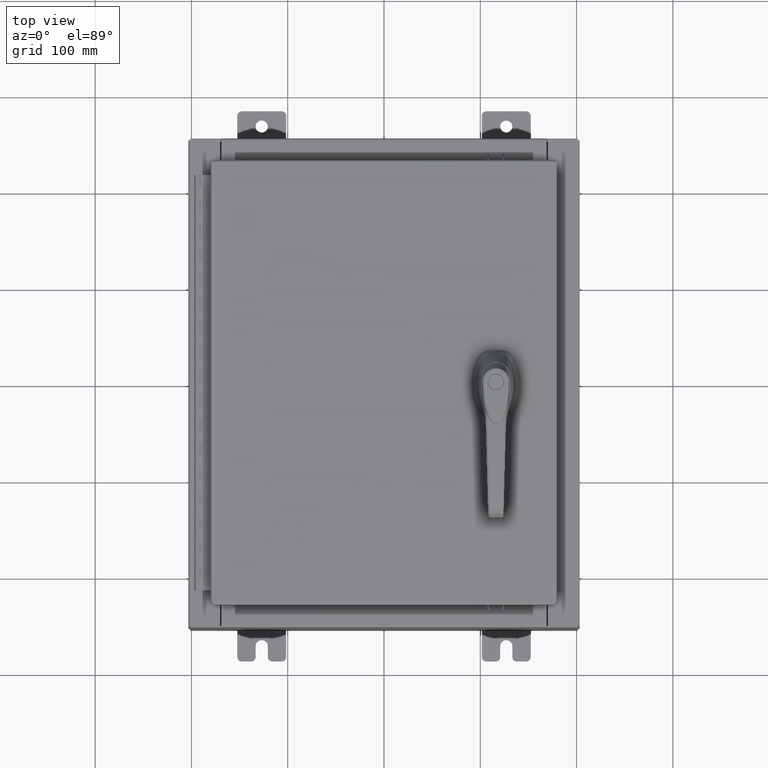
[diagram: clean part render]
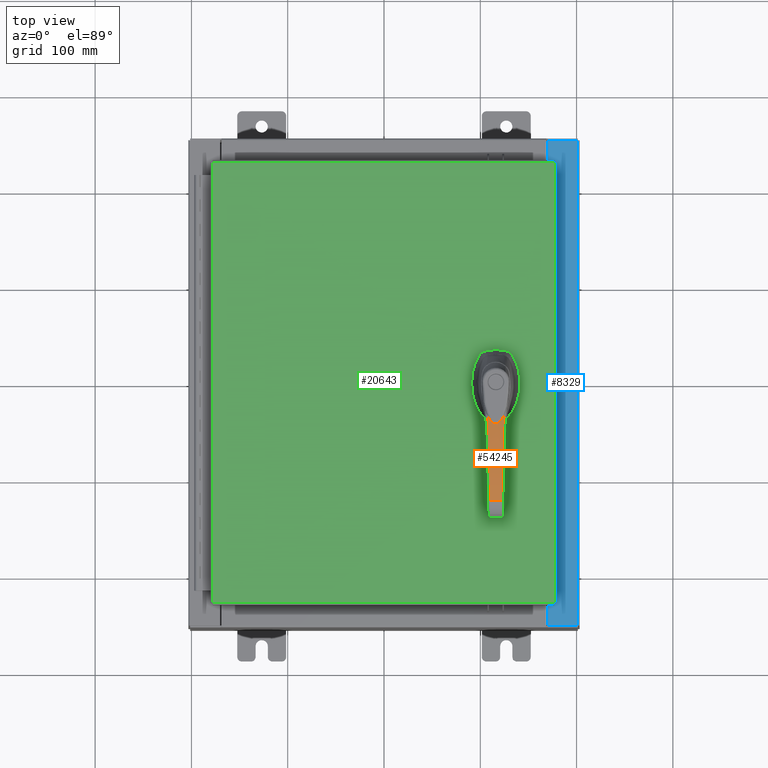
[diagram: same view with three faces highlighted in distinct colors, each labeled with its STEP entity id]
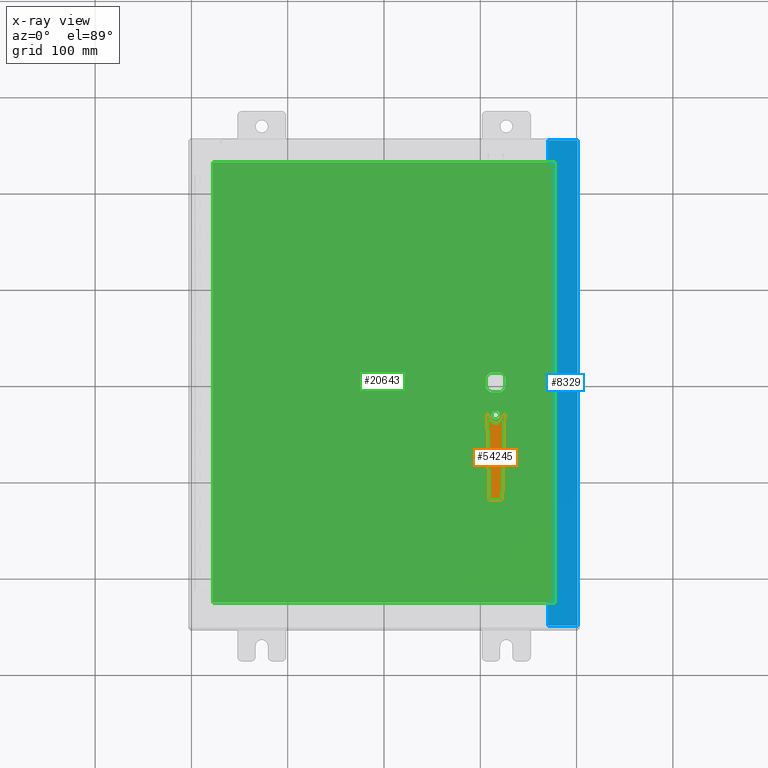
[diagram: x-ray of the same camera — body ghosted, the three highlighted faces saturated]
A machine part, top view with three faces highlighted in distinct colors.
The next image is the same camera in x-ray (body ghosted, the three faces saturated) — at least one of them is partly hidden behind the body in this view.
Their STEP definitions:

[orange] entity #54245 — the highlighted cylindrical surface (partial cylindrical patch) has radius 300 mm, axis along (-1, 0, 0).
#104 = ORIENTED_EDGE ( 'NONE', *, *, #26045, .F. ) ;
#1364 = CARTESIAN_POINT ( 'NONE',  ( 4.805199877897494300, 0.2549857665720929900, 1.824333981427782600 ) ) ;
#1464 = CARTESIAN_POINT ( 'NONE',  ( 1.461149604711532000, -0.3419711910575445900, 1.819977865742857400 ) ) ;
#1591 = CARTESIAN_POINT ( 'NONE',  ( 3.177837644293160400, -0.2973156531871449800, 1.940911141800460300 ) ) ;
#2508 = ORIENTED_EDGE ( 'NONE', *, *, #64305, .F. ) ;
#2923 = VERTEX_POINT ( 'NONE', #43318 ) ;
#3711 = CARTESIAN_POINT ( 'NONE',  ( 4.805199877897494300, 0.2549857665720929900, 1.824333981427782600 ) ) ;
#3734 = CARTESIAN_POINT ( 'NONE',  ( 1.411289339368777800, 0.2990482287359025900, 1.812323976823128300 ) ) ;
#4105 = CARTESIAN_POINT ( 'NONE',  ( 1.531841238162601400, 0.2267549729690642700, 1.829627039123031400 ) ) ;
#4437 = CARTESIAN_POINT ( 'NONE',  ( 3.354255696629975700, 0.2927274858646525300, 1.939252233246042200 ) ) ;
#4461 = CARTESIAN_POINT ( 'NONE',  ( 1.647126988818372600, 0.1096758325861591900, 1.844991371880551300 ) ) ;
#4511 = EDGE_CURVE ( 'NONE', #2923, #33308, #6240, .T. ) ;
#4808 = CARTESIAN_POINT ( 'NONE',  ( 1.962192344927157900, 0.3289308373534524700, 1.881644855761428500 ) ) ;
#4827 = CARTESIAN_POINT ( 'NONE',  ( 1.673618130089368700, -0.04931904063700406900, 1.848357284676167800 ) ) ;
#5187 = CARTESIAN_POINT ( 'NONE',  ( 1.633523690778695900, -0.1294182121702329200, 1.843237296713774200 ) ) ;
#5570 = CARTESIAN_POINT ( 'NONE',  ( 1.531958825236961100, -0.2266696006880555800, 1.829643296008423000 ) ) ;
#5815 = VECTOR ( 'NONE', #55509, 39.37007874015748100 ) ;
#5925 = CARTESIAN_POINT ( 'NONE',  ( 1.331296485917107300, -0.3367782127205284400, 1.800234481340108100 ) ) ;
#6240 = B_SPLINE_CURVE_WITH_KNOTS ( 'NONE', 3,
 ( #9957, #1464, #26918, #85909 ),
 .UNSPECIFIED., .F., .F.,
 ( 4, 4 ),
 ( 0.0000000000000000000, 1.000000000000000000 ),
 .UNSPECIFIED. ) ;
#6671 = B_SPLINE_CURVE_WITH_KNOTS ( 'NONE', 3,
 ( #104382, #70858, #28825, #87812, #37302, #96263, #45762, #104757, #54266, #3734, #62739, #12243, #71219, #20691, #79723, #29200, #88170, #37660, #96637, #46126, #105116, #54644, #4105, #63086, #12598, #71593, #21049, #80083, #29579, #88541, #38011, #96996, #46502, #105485, #54997, #4461, #63468, #12968, #71962, #21421, #80453, #29943, #88906, #38375, #97350, #46874, #105860, #55355, #4827, #63852, #13338, #72316, #21788, #80823, #30308, #89259, #38750, #97719, #47226, #106218, #55735, #5187, #64210, #13699, #72693, #22144, #81183, #30670, #89619, #39097, #98098, #47589, #106578, #56097, #5570, #64564, #14051, #73065, #22494, #81532, #31014, #89995, #39467, #98444, #47960, #106945, #56456, #5925, #64930 ),
 .UNSPECIFIED., .F., .F.,
 ( 4, 2, 1, 1, 1, 1, 1, 2, 2, 2, 1, 1, 1, 1, 1, 2, 2, 2, 1, 1, 1, 1, 1, 2, 2, 2, 1, 1, 1, 2, 2, 2, 2, 1, 1, 1, 2, 2, 2, 1, 1, 1, 1, 2, 2, 2, 1, 1, 1, 1, 1, 2, 2, 2, 1, 1, 1, 1, 1, 2, 2, 4 ),
 ( 0.0000000000000000000, 0.06249999999999003600, 0.09374999999998538700, 0.1093749999999830600, 0.1171874999999821500, 0.1210937499999813100, 0.1230468749999808500, 0.1240234374999806500, 0.1249999999999804600, 0.1874999999999860900, 0.2187499999999889000, 0.2343749999999906500, 0.2421874999999914500, 0.2460937499999918700, 0.2480468749999917300, 0.2490234374999917000, 0.2499999999999916700, 0.3124999999999928400, 0.3437499999999932300, 0.3593749999999933900, 0.3671874999999934500, 0.3710937499999935100, 0.3730468749999932800, 0.3740234374999929500, 0.3749999999999926200, 0.4062499999999894000, 0.4218749999999877900, 0.4296874999999869500, 0.4335937499999864000, 0.4355468749999860700, 0.4374999999999857300, 0.4999999999999753500, 0.5312499999999701400, 0.5468749999999676900, 0.5546874999999662500, 0.5585937499999658100, 0.5605468749999654700, 0.5624999999999651400, 0.5937499999999605900, 0.6093749999999581400, 0.6171874999999569200, 0.6210937499999562600, 0.6230468749999559200, 0.6240234374999558100, 0.6249999999999555900, 0.6874999999999337200, 0.7187499999999227300, 0.7343749999999172900, 0.7421874999999146200, 0.7460937499999134000, 0.7480468749999127400, 0.7490234374999126300, 0.7499999999999126300, 0.8124999999999367200, 0.8437499999999484900, 0.8593749999999547000, 0.8671874999999578100, 0.8710937499999592500, 0.8730468749999597000, 0.8740234374999602500, 0.8749999999999607000, 1.000000000000000000 ),
 .UNSPECIFIED. ) ;
#9957 = CARTESIAN_POINT ( 'NONE',  ( 1.549936709521859200, -0.3396595521461270900, 1.832114909085235300 ) ) ;
#10080 = CARTESIAN_POINT ( 'NONE',  ( 2.089199057867317400, -0.3256326111308650600, 1.905831137458305200 ) ) ;
#12243 = CARTESIAN_POINT ( 'NONE',  ( 1.412147350919585700, 0.2986147853169349700, 1.812451616407730400 ) ) ;
#12598 = CARTESIAN_POINT ( 'NONE',  ( 1.572688659303547800, 0.1951527432348467400, 1.835214844775211200 ) ) ;
#12944 = CARTESIAN_POINT ( 'NONE',  ( 3.255921162986640000, 0.2952847344197878100, 1.940502775483823500 ) ) ;
#12968 = CARTESIAN_POINT ( 'NONE',  ( 1.659580715408759800, 0.08662144301095313400, 1.846580881107003000 ) ) ;
#13313 = CARTESIAN_POINT ( 'NONE',  ( 1.638260262526207900, 0.3373621368790555300, 1.844188585699166700 ) ) ;
#13338 = CARTESIAN_POINT ( 'NONE',  ( 1.668765304187863400, -0.06434175467436795100, 1.847744838486969500 ) ) ;
#13699 = CARTESIAN_POINT ( 'NONE',  ( 1.632785392386051800, -0.1304217021505276700, 1.843141712585303300 ) ) ;
#14051 = CARTESIAN_POINT ( 'NONE',  ( 1.496057899066949700, -0.2514591596072197100, 1.824640546464775000 ) ) ;
#14274 = ORIENTED_EDGE ( 'NONE', *, *, #4511, .F. ) ;
#17911 = CYLINDRICAL_SURFACE ( 'NONE', #20522, 11.81102362204727300 ) ;
#19522 = CARTESIAN_POINT ( 'NONE',  ( 1.285167403707583800, 0.3546133445978453800, 1.792860362760510200 ) ) ;
#20460 = B_SPLINE_CURVE_WITH_KNOTS ( 'NONE', 3,
 ( #19522, #78553, #44949, #103918 ),
 .UNSPECIFIED., .F., .F.,
 ( 4, 4 ),
 ( 0.0000000000000000000, 1.000000000000000000 ),
 .UNSPECIFIED. ) ;
#20522 = AXIS2_PLACEMENT_3D ( 'NONE', #31597, #90550, #98650 ) ;
#20691 = CARTESIAN_POINT ( 'NONE',  ( 1.456517634884639600, 0.2752119614751011300, 1.818981777874296900 ) ) ;
#21049 = CARTESIAN_POINT ( 'NONE',  ( 1.609689720394129200, 0.1588428430745445200, 1.840131652460313500 ) ) ;
#21401 = CARTESIAN_POINT ( 'NONE',  ( 3.197470930382345000, 0.2968049740498349700, 1.940850218433543400 ) ) ;
#21421 = CARTESIAN_POINT ( 'NONE',  ( 1.665449941461008700, 0.07307405170698645600, 1.847325382728708200 ) ) ;
#21788 = CARTESIAN_POINT ( 'NONE',  ( 1.667452722112520200, -0.06791437558087545800, 1.847578869016394800 ) ) ;
#22144 = CARTESIAN_POINT ( 'NONE',  ( 1.605775901944853000, -0.1635624813666130000, 1.839624697243182900 ) ) ;
#22494 = CARTESIAN_POINT ( 'NONE',  ( 1.450862142650987600, -0.2781988563434977200, 1.818152528769777100 ) ) ;
#26045 = EDGE_CURVE ( 'NONE', #50827, #41949, #20460, .T. ) ;
#26676 = CARTESIAN_POINT ( 'NONE',  ( 4.805199877897494300, -0.2549857665720952100, 1.824333981427782600 ) ) ;
#26918 = CARTESIAN_POINT ( 'NONE',  ( 1.372892883534211400, -0.3469424119739058000, 1.806884306011911500 ) ) ;
#28825 = CARTESIAN_POINT ( 'NONE',  ( 1.330367034998291900, 0.3365594585218243400, 1.800015887332631500 ) ) ;
#29200 = CARTESIAN_POINT ( 'NONE',  ( 1.500882007459661400, 0.2481468865976162200, 1.825310919166964500 ) ) ;
#29553 = CARTESIAN_POINT ( 'NONE',  ( 4.384581782162140200, 0.2659316760357900400, 1.876757077655752500 ) ) ;
#29579 = CARTESIAN_POINT ( 'NONE',  ( 1.627642221730809500, 0.1372262118340385800, 1.842474734026389200 ) ) ;
#29919 = CARTESIAN_POINT ( 'NONE',  ( 3.183455179332786300, 0.2971695341875231800, 1.940896711539998400 ) ) ;
#29943 = CARTESIAN_POINT ( 'NONE',  ( 1.666720180148472800, 0.06983946041971546300, 1.847486187034462300 ) ) ;
#30308 = CARTESIAN_POINT ( 'NONE',  ( 1.662946339963030900, -0.07969119123599965900, 1.847008659323605500 ) ) ;
#30670 = CARTESIAN_POINT ( 'NONE',  ( 1.567082441918974200, -0.1995284965863753600, 1.834452944274891600 ) ) ;
#31014 = CARTESIAN_POINT ( 'NONE',  ( 1.422341089794099600, -0.2934036132516589800, 1.813963700160034400 ) ) ;
#31597 = CARTESIAN_POINT ( 'NONE',  ( 3.149606299212600400, 0.3588687022006186700, -9.870078740157508100 ) ) ;
#33308 = VERTEX_POINT ( 'NONE', #78850 ) ;
#34723 = CARTESIAN_POINT ( 'NONE',  ( 1.285167403707583800, 0.3546133445978453800, 1.792860362760510200 ) ) ;
#37302 = CARTESIAN_POINT ( 'NONE',  ( 1.377774985390532600, 0.3154086851259891300, 1.807295794097445000 ) ) ;
#37660 = CARTESIAN_POINT ( 'NONE',  ( 1.524578228761906500, 0.2319618882066543100, 1.828620816553897500 ) ) ;
#37992 = CARTESIAN_POINT ( 'NONE',  ( 3.988872018762669800, 0.2762265065312503000, 1.911874702511223000 ) ) ;
#38011 = CARTESIAN_POINT ( 'NONE',  ( 1.631777938687821700, 0.1317797834924146800, 1.843011216588310100 ) ) ;
#38353 = CARTESIAN_POINT ( 'NONE',  ( 2.994844391632358600, 0.3020755544132371900, 1.941348543382798200 ) ) ;
#38375 = CARTESIAN_POINT ( 'NONE',  ( 1.675872596846173800, 0.04566907200706316800, 1.848644063507536100 ) ) ;
#38750 = CARTESIAN_POINT ( 'NONE',  ( 1.649525308882281900, -0.1053112417757890600, 1.845297665867068100 ) ) ;
#39097 = CARTESIAN_POINT ( 'NONE',  ( 1.540911026017878900, -0.2200747778046598100, 1.830878084273672900 ) ) ;
#39467 = CARTESIAN_POINT ( 'NONE',  ( 1.415001884902487700, -0.2971666495078804600, 1.812875826676425300 ) ) ;
#40693 = CARTESIAN_POINT ( 'NONE',  ( 4.805199877897494300, -0.2549857665720952100, 1.824333981427782600 ) ) ;
#41949 = VERTEX_POINT ( 'NONE', #56887 ) ;
#43318 = CARTESIAN_POINT ( 'NONE',  ( 1.549936709521859200, -0.3396595521461270900, 1.832114909085235300 ) ) ;
#44949 = CARTESIAN_POINT ( 'NONE',  ( 1.461149604711799300, 0.3419711910575358200, 1.819977865742894400 ) ) ;
#45762 = CARTESIAN_POINT ( 'NONE',  ( 1.403971242061122100, 0.3027154104630229700, 1.811233171745016100 ) ) ;
#46126 = CARTESIAN_POINT ( 'NONE',  ( 1.530290378760431600, 0.2278771327639583800, 1.829412508182429500 ) ) ;
#46478 = CARTESIAN_POINT ( 'NONE',  ( 3.605464906671498800, 0.2861957975425937800, 1.932408694108106700 ) ) ;
#46502 = CARTESIAN_POINT ( 'NONE',  ( 1.632741932373672500, 0.1304805322846225000, 1.843136084596472400 ) ) ;
#46848 = CARTESIAN_POINT ( 'NONE',  ( 2.504789629931726500, 0.3148162043671249900, 1.924408988684548600 ) ) ;
#46874 = CARTESIAN_POINT ( 'NONE',  ( 1.680095335233360300, -0.01197136183687896900, 1.849171087712747400 ) ) ;
#47226 = CARTESIAN_POINT ( 'NONE',  ( 1.638941990221849200, -0.1218315539769644100, 1.843937560668221100 ) ) ;
#47589 = CARTESIAN_POINT ( 'NONE',  ( 1.534019329573104200, -0.2251692678404894900, 1.829928034573032400 ) ) ;
#47960 = CARTESIAN_POINT ( 'NONE',  ( 1.413242188827249300, -0.2980603697912341300, 1.812614391285418000 ) ) ;
#49810 = ORIENTED_EDGE ( 'NONE', *, *, #103230, .T. ) ;
#50827 = VERTEX_POINT ( 'NONE', #34723 ) ;
#52107 = CARTESIAN_POINT ( 'NONE',  ( 3.722113557932751800, -0.2831583025764953800, 1.939610180467789000 ) ) ;
#54245 = ADVANCED_FACE ( 'NONE', ( #85222 ), #17911, .T. ) ;
#54266 = CARTESIAN_POINT ( 'NONE',  ( 1.410378708594589100, 0.2995076315425554400, 1.812188464822338500 ) ) ;
#54644 = CARTESIAN_POINT ( 'NONE',  ( 1.531637965723838400, 0.2269023104898826300, 1.829598928321428200 ) ) ;
#54982 = CARTESIAN_POINT ( 'NONE',  ( 3.397158093014658800, 0.2916119047857185800, 1.938425827258929000 ) ) ;
#54997 = CARTESIAN_POINT ( 'NONE',  ( 1.640565656399486800, 0.1198494022903177600, 1.844149003382676600 ) ) ;
#55330 = CARTESIAN_POINT ( 'NONE',  ( 2.085957004588865300, 0.3257099898517480400, 1.893740539790306400 ) ) ;
#55355 = CARTESIAN_POINT ( 'NONE',  ( 1.675677567251026200, -0.04071549074534834600, 1.848616337587199800 ) ) ;
#55509 = DIRECTION ( 'NONE',  ( -3.047703971395582900E-030, 1.000000000000000000, 1.577721810442019400E-030 ) ) ;
#55735 = CARTESIAN_POINT ( 'NONE',  ( 1.634216720233400800, -0.1284710039474838100, 1.843326990127298200 ) ) ;
#56097 = CARTESIAN_POINT ( 'NONE',  ( 1.532357968586518300, -0.2263797702776816100, 1.829698477823366900 ) ) ;
#56456 = CARTESIAN_POINT ( 'NONE',  ( 1.373760058113475500, -0.3180463064242678400, 1.806743859184434300 ) ) ;
#56887 = CARTESIAN_POINT ( 'NONE',  ( 1.549936709521848400, 0.3396595521461238100, 1.832114909085233100 ) ) ;
#60580 = CARTESIAN_POINT ( 'NONE',  ( 2.633561730653564600, -0.3114730037977933000, 1.942212103133133600 ) ) ;
#62739 = CARTESIAN_POINT ( 'NONE',  ( 1.411895976838730200, 0.2987418508004999800, 1.812414227103911600 ) ) ;
#62800 = ORIENTED_EDGE ( 'NONE', *, *, #81854, .T. ) ;
#63067 = CARTESIAN_POINT ( 'NONE',  ( 4.713819558154687800, 0.2573626924901420400, 1.837270814955575600 ) ) ;
#63086 = CARTESIAN_POINT ( 'NONE',  ( 1.553573932691913800, 0.2109698468301407800, 1.832631472685393400 ) ) ;
#63443 = CARTESIAN_POINT ( 'NONE',  ( 3.288871157594098100, 0.2944278238416442900, 1.940143925120735500 ) ) ;
#63468 = CARTESIAN_POINT ( 'NONE',  ( 1.655649401556303900, 0.09432184503515028700, 1.846080186316506400 ) ) ;
#63827 = CARTESIAN_POINT ( 'NONE',  ( 1.738344976384676100, 0.3347569108671061300, 1.856868895625627000 ) ) ;
#63852 = CARTESIAN_POINT ( 'NONE',  ( 1.670501837927465400, -0.05933737364029736900, 1.847964213049008200 ) ) ;
#64009 = CARTESIAN_POINT ( 'NONE',  ( 4.805199877897495100, 6.099088612688659900, 1.824333981427782600 ) ) ;
#64210 = CARTESIAN_POINT ( 'NONE',  ( 1.633059957810174100, -0.1300495619730006300, 1.843177265309145400 ) ) ;
#64305 = EDGE_CURVE ( 'NONE', #102994, #2923, #67263, .T. ) ;
#64564 = CARTESIAN_POINT ( 'NONE',  ( 1.514556654445386600, -0.2392854525976240400, 1.827236800739581600 ) ) ;
#64930 = CARTESIAN_POINT ( 'NONE',  ( 1.285167405151898900, -0.3546133440856413200, 1.792860362220502600 ) ) ;
#67263 = B_SPLINE_CURVE_WITH_KNOTS ( 'NONE', 3,
 ( #26676, #85671, #52107, #1591, #60580, #10080, #69062 ),
 .UNSPECIFIED., .F., .F.,
 ( 4, 3, 4 ),
 ( 0.0000000000000000000, 0.4999999999999983900, 1.000000000000000000 ),
 .UNSPECIFIED. ) ;
#69062 = CARTESIAN_POINT ( 'NONE',  ( 1.549936709521859200, -0.3396595521461270900, 1.832114909085235300 ) ) ;
#70858 = CARTESIAN_POINT ( 'NONE',  ( 1.308225132359812900, 0.3456984148396822200, 1.796546292019678000 ) ) ;
#71219 = CARTESIAN_POINT ( 'NONE',  ( 1.435195623636526200, 0.2869488096781731600, 1.815878705668511300 ) ) ;
#71294 = ORIENTED_EDGE ( 'NONE', *, *, #103860, .T. ) ;
#71593 = CARTESIAN_POINT ( 'NONE',  ( 1.597928116298620700, 0.1710148495156824400, 1.838578136496561900 ) ) ;
#71938 = CARTESIAN_POINT ( 'NONE',  ( 3.217029300581201400, 0.2962962612095054200, 1.940761667420591900 ) ) ;
#71962 = CARTESIAN_POINT ( 'NONE',  ( 1.663589786831877000, 0.07759667621417740100, 1.847089689351793000 ) ) ;
#72293 = CARTESIAN_POINT ( 'NONE',  ( 1.549936709521848400, 0.3396595521461238100, 1.832114909085233100 ) ) ;
#72316 = CARTESIAN_POINT ( 'NONE',  ( 1.667982851357443700, -0.06648546394591745000, 1.847645912295605900 ) ) ;
#72693 = CARTESIAN_POINT ( 'NONE',  ( 1.620322453436922300, -0.1472583990823398700, 1.841527598334624000 ) ) ;
#73065 = CARTESIAN_POINT ( 'NONE',  ( 1.466267725725016100, -0.2693476378157206300, 1.820376805866251500 ) ) ;
#74160 = EDGE_LOOP ( 'NONE', ( #62800, #71294, #104, #49810, #14274, #2508 ) ) ;
#78553 = CARTESIAN_POINT ( 'NONE',  ( 1.372892883534752000, 0.3469424119738760400, 1.806884306011991500 ) ) ;
#78850 = CARTESIAN_POINT ( 'NONE',  ( 1.285167405151898900, -0.3546133440856413200, 1.792860362220502600 ) ) ;
#79723 = CARTESIAN_POINT ( 'NONE',  ( 1.486437698170233600, 0.2572311655015944200, 1.823263412956684300 ) ) ;
#80064 = CARTESIAN_POINT ( 'NONE',  ( 4.611449591161993500, 0.2600272595664899800, 1.850686182147244900 ) ) ;
#80083 = CARTESIAN_POINT ( 'NONE',  ( 1.621908635050488800, 0.1444618146254943700, 1.841728913890026400 ) ) ;
#80426 = CARTESIAN_POINT ( 'NONE',  ( 3.189064689842291400, 0.2970236258625772500, 1.940879303231495700 ) ) ;
#80453 = CARTESIAN_POINT ( 'NONE',  ( 1.666216210166177300, 0.07113358953773248100, 1.847422397405537700 ) ) ;
#80823 = CARTESIAN_POINT ( 'NONE',  ( 1.667157571439220600, -0.06869618003176583600, 1.847541531571271800 ) ) ;
#81183 = CARTESIAN_POINT ( 'NONE',  ( 1.580548218858688800, -0.1876082219816785900, 1.836261751761624000 ) ) ;
#81532 = CARTESIAN_POINT ( 'NONE',  ( 1.431996714045666400, -0.2883624919504100800, 1.815388736092753200 ) ) ;
#81854 = EDGE_CURVE ( 'NONE', #102994, #102512, #92895, .T. ) ;
#85222 = FACE_OUTER_BOUND ( 'NONE', #74160, .T. ) ;
#85671 = CARTESIAN_POINT ( 'NONE',  ( 4.266296091497493700, -0.2690033809075380600, 1.900627307953375500 ) ) ;
#85909 = CARTESIAN_POINT ( 'NONE',  ( 1.285167405151898900, -0.3546133440856413200, 1.792860362220502600 ) ) ;
#87812 = CARTESIAN_POINT ( 'NONE',  ( 1.362201980543982000, 0.3225149545132347000, 1.804919336107090300 ) ) ;
#88170 = CARTESIAN_POINT ( 'NONE',  ( 1.516830157375126600, 0.2373842696044988800, 1.827543091604354200 ) ) ;
#88513 = CARTESIAN_POINT ( 'NONE',  ( 4.260082169442995300, 0.2691715254287421200, 1.889412627025917900 ) ) ;
#88541 = CARTESIAN_POINT ( 'NONE',  ( 1.630415031557475900, 0.1335971382965780400, 1.842834560165933700 ) ) ;
#88888 = CARTESIAN_POINT ( 'NONE',  ( 3.180696913865969800, 0.2972412797304878100, 1.940904307400741700 ) ) ;
#88906 = CARTESIAN_POINT ( 'NONE',  ( 1.666943250047642400, 0.06925946003726625400, 1.847514415332586000 ) ) ;
#89259 = CARTESIAN_POINT ( 'NONE',  ( 1.658104608024412600, -0.08997679606067658700, 1.846394063252973600 ) ) ;
#89619 = CARTESIAN_POINT ( 'NONE',  ( 1.549882932702335800, -0.2132559411452254200, 1.832109519501149200 ) ) ;
#89995 = CARTESIAN_POINT ( 'NONE',  ( 1.417457569571604500, -0.2959139997767320000, 1.813240278477140900 ) ) ;
#90550 = DIRECTION ( 'NONE',  ( 3.047703971395582900E-030, -1.000000000000000000, -1.577721810442019400E-030 ) ) ;
#92895 = LINE ( 'NONE', #64009, #5815 ) ;
#96263 = CARTESIAN_POINT ( 'NONE',  ( 1.395339831983432000, 0.3069710070873723500, 1.809941467447429500 ) ) ;
#96637 = CARTESIAN_POINT ( 'NONE',  ( 1.528395749153934800, 0.2292404292824107600, 1.829150185326992000 ) ) ;
#96975 = CARTESIAN_POINT ( 'NONE',  ( 3.842159367048332300, 0.2800416382408064700, 1.921681097564919200 ) ) ;
#96996 = CARTESIAN_POINT ( 'NONE',  ( 1.632357006304429000, 0.1310003132830374900, 1.843086230139450200 ) ) ;
#97330 = CARTESIAN_POINT ( 'NONE',  ( 2.823583190880745200, 0.3065276448944513900, 1.937522127742032000 ) ) ;
#97350 = CARTESIAN_POINT ( 'NONE',  ( 1.680175953285399300, 0.02266160196180112500, 1.849181196457984500 ) ) ;
#97719 = CARTESIAN_POINT ( 'NONE',  ( 1.644906487703450000, -0.1129549742528696400, 1.844705813593938900 ) ) ;
#98098 = CARTESIAN_POINT ( 'NONE',  ( 1.536332061329269500, -0.2234729747293790800, 1.830247252460752700 ) ) ;
#98444 = CARTESIAN_POINT ( 'NONE',  ( 1.413946465048457900, -0.2977029543502179300, 1.812719044079251300 ) ) ;
#98650 = DIRECTION ( 'NONE',  ( 0.0000000000000000000, 0.0000000000000000000, -1.000000000000000000 ) ) ;
#99925 = B_SPLINE_CURVE_WITH_KNOTS ( 'NONE', 3,
 ( #3711, #63067, #80064, #29553, #88513, #37992, #96975, #46478, #105458, #54982, #4437, #63443, #12944, #71938, #21401, #80426, #29919, #88888, #38353, #97330, #46848, #105841, #55330, #4808, #63827, #13313, #72293 ),
 .UNSPECIFIED., .F., .F.,
 ( 4, 2, 2, 2, 2, 2, 1, 1, 1, 2, 2, 2, 2, 2, 4 ),
 ( 0.0000000000000000000, 0.1250000000000013000, 0.2500000000000026100, 0.3750000000000038900, 0.4375000000000045500, 0.4687500000000051100, 0.4843750000000055500, 0.4921875000000056100, 0.4960937500000057700, 0.4980468750000059400, 0.5000000000000060000, 0.6250000000000045500, 0.7500000000000030000, 0.8750000000000015500, 1.000000000000000000 ),
 .UNSPECIFIED. ) ;
#102512 = VERTEX_POINT ( 'NONE', #1364 ) ;
#102994 = VERTEX_POINT ( 'NONE', #40693 ) ;
#103230 = EDGE_CURVE ( 'NONE', #50827, #33308, #6671, .T. ) ;
#103860 = EDGE_CURVE ( 'NONE', #102512, #41949, #99925, .T. ) ;
#103918 = CARTESIAN_POINT ( 'NONE',  ( 1.549936709521848400, 0.3396595521461238100, 1.832114909085233100 ) ) ;
#104382 = CARTESIAN_POINT ( 'NONE',  ( 1.285167403707583800, 0.3546133445978453800, 1.792860362760510200 ) ) ;
#104757 = CARTESIAN_POINT ( 'NONE',  ( 1.408249181654877200, 0.3005784227495881300, 1.811871312986576200 ) ) ;
#105116 = CARTESIAN_POINT ( 'NONE',  ( 1.531099334706955700, 0.2272923127439795400, 1.829524427485566400 ) ) ;
#105458 = CARTESIAN_POINT ( 'NONE',  ( 3.523797029380386200, 0.2883190942660983600, 1.935318005950533900 ) ) ;
#105485 = CARTESIAN_POINT ( 'NONE',  ( 1.632892665029201300, 0.1302765233638262800, 1.843155604267188800 ) ) ;
#105841 = CARTESIAN_POINT ( 'NONE',  ( 2.357254433555592900, 0.3186526733585843300, 1.915122674931474000 ) ) ;
#105860 = CARTESIAN_POINT ( 'NONE',  ( 1.678980772138695600, -0.02348651453883124400, 1.849031485695049800 ) ) ;
#106218 = CARTESIAN_POINT ( 'NONE',  ( 1.635815798552248600, -0.1262595667975538500, 1.843533802100511200 ) ) ;
#106578 = CARTESIAN_POINT ( 'NONE',  ( 1.533023177175511600, -0.2258956494556976200, 1.829790409659595200 ) ) ;
#106945 = CARTESIAN_POINT ( 'NONE',  ( 1.412839862362137200, -0.2982642543102428900, 1.812554586203149100 ) ) ;

[blue] entity #8329 — the highlighted planar face has unit normal (-0, 0, -1).
#93 = EDGE_LOOP ( 'NONE', ( #38240, #15842, #85868, #26035, #91928, #67770, #18711, #61078, #96902, #23764, #80801, #45201 ) ) ;
#376 = DIRECTION ( 'NONE',  ( 1.100963394019027800E-016, -1.000000000000000000, -7.852910284722398000E-031 ) ) ;
#423 = LINE ( 'NONE', #42702, #62382 ) ;
#693 = DIRECTION ( 'NONE',  ( 1.000000000000000000, 2.170286390199955400E-014, 0.0000000000000000000 ) ) ;
#727 = CARTESIAN_POINT ( 'NONE',  ( 6.699700000000030200, 7.376124450909251200E-016, 7.925300000000008900 ) ) ;
#785 = DIRECTION ( 'NONE',  ( -7.132762385546378400E-015, 0.0000000000000000000, -1.000000000000000000 ) ) ;
#1483 = VERTEX_POINT ( 'NONE', #30036 ) ;
#4376 = LINE ( 'NONE', #49588, #63752 ) ;
#5985 = CARTESIAN_POINT ( 'NONE',  ( 7.912300000000029400, 9.925299999999991100, 7.925300000000000000 ) ) ;
#7164 = LINE ( 'NONE', #39370, #71803 ) ;
#8329 = ADVANCED_FACE ( 'NONE', ( #76064 ), #76380, .F. ) ;
#8724 = DIRECTION ( 'NONE',  ( 7.132762385546378400E-015, 0.0000000000000000000, 1.000000000000000000 ) ) ;
#9525 = DIRECTION ( 'NONE',  ( -1.000000000000000000, 0.0000000000000000000, 0.0000000000000000000 ) ) ;
#9745 = DIRECTION ( 'NONE',  ( 1.100963394019027800E-016, -1.000000000000000000, -7.852910284722398000E-031 ) ) ;
#11248 = VERTEX_POINT ( 'NONE', #42692 ) ;
#11310 = EDGE_CURVE ( 'NONE', #76216, #98765, #84975, .T. ) ;
#11662 = EDGE_CURVE ( 'NONE', #82442, #11248, #4376, .T. ) ;
#12124 = EDGE_CURVE ( 'NONE', #63335, #72257, #423, .T. ) ;
#12596 = CARTESIAN_POINT ( 'NONE',  ( 7.912300000000029400, -9.925300000000001800, 7.925300000000000000 ) ) ;
#13331 = DIRECTION ( 'NONE',  ( 7.132762385546378400E-015, 0.0000000000000000000, 1.000000000000000000 ) ) ;
#13799 = DIRECTION ( 'NONE',  ( -0.0000000000000000000, 1.000000000000000000, -0.0000000000000000000 ) ) ;
#14871 = LINE ( 'NONE', #12596, #101935 ) ;
#15191 = CARTESIAN_POINT ( 'NONE',  ( 6.712700000000032800, -8.593750000000005300, 7.925300000000008900 ) ) ;
#15842 = ORIENTED_EDGE ( 'NONE', *, *, #27330, .T. ) ;
#17525 = CARTESIAN_POINT ( 'NONE',  ( 6.699700000000031100, -8.631100000000005300, 7.925300000000008900 ) ) ;
#18711 = ORIENTED_EDGE ( 'NONE', *, *, #29885, .F. ) ;
#21045 = DIRECTION ( 'NONE',  ( -0.0000000000000000000, -1.000000000000000000, -0.0000000000000000000 ) ) ;
#21169 = VERTEX_POINT ( 'NONE', #81612 ) ;
#23764 = ORIENTED_EDGE ( 'NONE', *, *, #71051, .F. ) ;
#23910 = CIRCLE ( 'NONE', #48720, 0.01867499999999949400 ) ;
#24482 = CARTESIAN_POINT ( 'NONE',  ( 6.699700000000031100, -9.925300000000001800, 7.925300000000008900 ) ) ;
#24554 = VECTOR ( 'NONE', #13799, 39.37007874015748100 ) ;
#26035 = ORIENTED_EDGE ( 'NONE', *, *, #105316, .F. ) ;
#26270 = DIRECTION ( 'NONE',  ( 1.000000000000000000, 0.0000000000000000000, -7.132762385546378400E-015 ) ) ;
#26328 = CARTESIAN_POINT ( 'NONE',  ( 6.699700000000030200, 7.376124450909251200E-016, 7.925300000000008900 ) ) ;
#27135 = VERTEX_POINT ( 'NONE', #24482 ) ;
#27330 = EDGE_CURVE ( 'NONE', #63335, #27135, #49696, .T. ) ;
#29885 = EDGE_CURVE ( 'NONE', #1483, #75138, #7164, .T. ) ;
#30036 = CARTESIAN_POINT ( 'NONE',  ( 6.750050000000032700, 8.631099999999994700, 7.925300000000008900 ) ) ;
#32313 = LINE ( 'NONE', #68291, #96898 ) ;
#33172 = EDGE_CURVE ( 'NONE', #11248, #75138, #76960, .T. ) ;
#34938 = CIRCLE ( 'NONE', #101120, 0.01867499999999949400 ) ;
#36764 = EDGE_CURVE ( 'NONE', #49807, #21169, #64627, .T. ) ;
#38240 = ORIENTED_EDGE ( 'NONE', *, *, #12124, .F. ) ;
#39370 = CARTESIAN_POINT ( 'NONE',  ( 6.750050000000032700, 8.631099999999994700, 7.925300000000008900 ) ) ;
#40047 = VECTOR ( 'NONE', #9525, 39.37007874015748100 ) ;
#42692 = CARTESIAN_POINT ( 'NONE',  ( 6.699700000000029300, 9.925299999999992900, 7.925300000000008900 ) ) ;
#42702 = CARTESIAN_POINT ( 'NONE',  ( 6.699700000000031100, -8.631100000000005300, 7.925300000000008900 ) ) ;
#45201 = ORIENTED_EDGE ( 'NONE', *, *, #55373, .F. ) ;
#48720 = AXIS2_PLACEMENT_3D ( 'NONE', #59230, #8724, #67717 ) ;
#49588 = CARTESIAN_POINT ( 'NONE',  ( 5.679009539018269400E-014, 9.925299999999996500, 7.925300000000056900 ) ) ;
#49696 = LINE ( 'NONE', #26328, #109068 ) ;
#49807 = VERTEX_POINT ( 'NONE', #94588 ) ;
#55373 = EDGE_CURVE ( 'NONE', #72257, #76216, #34938, .T. ) ;
#55842 = CARTESIAN_POINT ( 'NONE',  ( 6.712700000000032800, -8.593750000000005300, 7.925300000000008900 ) ) ;
#59230 = CARTESIAN_POINT ( 'NONE',  ( 6.750050000000032700, 8.612424999999992900, 7.925300000000008900 ) ) ;
#59782 = DIRECTION ( 'NONE',  ( -1.000000000000000000, 0.0000000000000000000, 7.132762385546378400E-015 ) ) ;
#61078 = ORIENTED_EDGE ( 'NONE', *, *, #85311, .F. ) ;
#62382 = VECTOR ( 'NONE', #693, 39.37007874015748100 ) ;
#63335 = VERTEX_POINT ( 'NONE', #17525 ) ;
#63752 = VECTOR ( 'NONE', #83541, 39.37007874015748100 ) ;
#63846 = CARTESIAN_POINT ( 'NONE',  ( 6.750050000000032700, -8.612425000000005300, 7.925300000000008900 ) ) ;
#64627 = LINE ( 'NONE', #81304, #89689 ) ;
#67717 = DIRECTION ( 'NONE',  ( 1.000000000000000000, 0.0000000000000000000, 0.0000000000000000000 ) ) ;
#67770 = ORIENTED_EDGE ( 'NONE', *, *, #33172, .T. ) ;
#68291 = CARTESIAN_POINT ( 'NONE',  ( 5.679009539018269400E-014, -9.925300000000001800, 7.925300000000056900 ) ) ;
#69970 = CARTESIAN_POINT ( 'NONE',  ( 6.750050000000032700, -8.593750000000005300, 7.925300000000008900 ) ) ;
#71051 = EDGE_CURVE ( 'NONE', #98765, #49807, #91827, .T. ) ;
#71803 = VECTOR ( 'NONE', #89894, 39.37007874015748100 ) ;
#72257 = VERTEX_POINT ( 'NONE', #98652 ) ;
#72311 = DIRECTION ( 'NONE',  ( 1.000000000000000000, 0.0000000000000000000, 0.0000000000000000000 ) ) ;
#72569 = VERTEX_POINT ( 'NONE', #95981 ) ;
#72874 = AXIS2_PLACEMENT_3D ( 'NONE', #84504, #785, #59782 ) ;
#72904 = EDGE_CURVE ( 'NONE', #27135, #72569, #32313, .T. ) ;
#75138 = VERTEX_POINT ( 'NONE', #108892 ) ;
#76064 = FACE_OUTER_BOUND ( 'NONE', #93, .T. ) ;
#76216 = VERTEX_POINT ( 'NONE', #69970 ) ;
#76380 = PLANE ( 'NONE',  #72874 ) ;
#76960 = LINE ( 'NONE', #727, #96658 ) ;
#80801 = ORIENTED_EDGE ( 'NONE', *, *, #11310, .F. ) ;
#81304 = CARTESIAN_POINT ( 'NONE',  ( 6.712700000000032800, 8.593749999999994700, 7.925300000000008900 ) ) ;
#81612 = CARTESIAN_POINT ( 'NONE',  ( 6.750050000000032700, 8.593749999999992900, 7.925300000000008900 ) ) ;
#82442 = VERTEX_POINT ( 'NONE', #5985 ) ;
#83541 = DIRECTION ( 'NONE',  ( -1.000000000000000000, 0.0000000000000000000, 7.132762385546378400E-015 ) ) ;
#84504 = CARTESIAN_POINT ( 'NONE',  ( 5.679009539018269400E-014, 0.0000000000000000000, 7.925300000000056900 ) ) ;
#84975 = LINE ( 'NONE', #93544, #40047 ) ;
#85311 = EDGE_CURVE ( 'NONE', #21169, #1483, #23910, .T. ) ;
#85868 = ORIENTED_EDGE ( 'NONE', *, *, #72904, .T. ) ;
#89689 = VECTOR ( 'NONE', #98210, 39.37007874015748100 ) ;
#89894 = DIRECTION ( 'NONE',  ( -1.000000000000000000, 2.170286390199861100E-014, 0.0000000000000000000 ) ) ;
#91827 = LINE ( 'NONE', #55842, #24554 ) ;
#91928 = ORIENTED_EDGE ( 'NONE', *, *, #11662, .T. ) ;
#93544 = CARTESIAN_POINT ( 'NONE',  ( 6.750050000000032700, -8.593750000000005300, 7.925300000000008900 ) ) ;
#94588 = CARTESIAN_POINT ( 'NONE',  ( 6.712700000000032800, 8.593749999999994700, 7.925300000000008900 ) ) ;
#95981 = CARTESIAN_POINT ( 'NONE',  ( 7.912300000000029400, -9.925300000000001800, 7.925300000000000000 ) ) ;
#96658 = VECTOR ( 'NONE', #376, 39.37007874015748100 ) ;
#96898 = VECTOR ( 'NONE', #26270, 39.37007874015748100 ) ;
#96902 = ORIENTED_EDGE ( 'NONE', *, *, #36764, .F. ) ;
#98210 = DIRECTION ( 'NONE',  ( 1.000000000000000000, 0.0000000000000000000, 0.0000000000000000000 ) ) ;
#98652 = CARTESIAN_POINT ( 'NONE',  ( 6.750050000000032700, -8.631100000000005300, 7.925300000000008900 ) ) ;
#98765 = VERTEX_POINT ( 'NONE', #15191 ) ;
#101120 = AXIS2_PLACEMENT_3D ( 'NONE', #63846, #13331, #72311 ) ;
#101935 = VECTOR ( 'NONE', #21045, 39.37007874015748100 ) ;
#105316 = EDGE_CURVE ( 'NONE', #82442, #72569, #14871, .T. ) ;
#108892 = CARTESIAN_POINT ( 'NONE',  ( 6.699700000000029300, 8.631099999999994700, 7.925300000000008900 ) ) ;
#109068 = VECTOR ( 'NONE', #9745, 39.37007874015748100 ) ;

[green] entity #20643 — the highlighted planar face has unit normal (0, 0, -1).
#229 = ORIENTED_EDGE ( 'NONE', *, *, #35569, .F. ) ;
#819 = EDGE_CURVE ( 'NONE', #109123, #18362, #47623, .T. ) ;
#2828 = CARTESIAN_POINT ( 'NONE',  ( 0.0000000000000000000, 0.4029999999999252000, 0.0000000000000000000 ) ) ;
#3067 = VERTEX_POINT ( 'NONE', #108498 ) ;
#3073 = VERTEX_POINT ( 'NONE', #91129 ) ;
#3284 = VERTEX_POINT ( 'NONE', #9676 ) ;
#3791 = FACE_BOUND ( 'NONE', #88934, .T. ) ;
#4480 = EDGE_CURVE ( 'NONE', #18327, #58815, #101498, .T. ) ;
#4778 = CARTESIAN_POINT ( 'NONE',  ( 4.980999999999927900, 0.0000000000000000000, 0.0000000000000000000 ) ) ;
#5035 = CARTESIAN_POINT ( 'NONE',  ( 0.0000000000000000000, 0.0000000000000000000, 0.0000000000000000000 ) ) ;
#5240 = DIRECTION ( 'NONE',  ( 1.000000000000000000, 0.0000000000000000000, 0.0000000000000000000 ) ) ;
#8414 = DIRECTION ( 'NONE',  ( 1.000000000000000000, 0.0000000000000000000, 0.0000000000000000000 ) ) ;
#8814 = CARTESIAN_POINT ( 'NONE',  ( 4.578000000000002100, 0.0000000000000000000, 0.0000000000000000000 ) ) ;
#9159 = FACE_OUTER_BOUND ( 'NONE', #37057, .T. ) ;
#9549 = CARTESIAN_POINT ( 'NONE',  ( 4.377772629243692900, -0.4029999999999252000, 0.0000000000000000000 ) ) ;
#9676 = CARTESIAN_POINT ( 'NONE',  ( 4.175000000000076200, 0.2002273707563079800, 0.0000000000000000000 ) ) ;
#10494 = LINE ( 'NONE', #2828, #52711 ) ;
#11458 = CARTESIAN_POINT ( 'NONE',  ( 4.980999999999927900, 0.2002273707563080300, 0.0000000000000000000 ) ) ;
#11521 = CARTESIAN_POINT ( 'NONE',  ( 6.990300000000002200, 9.006300000000001300, -7.683322482180740400E-016 ) ) ;
#13132 = VECTOR ( 'NONE', #78817, 39.37007874015748100 ) ;
#13281 = ORIENTED_EDGE ( 'NONE', *, *, #4480, .T. ) ;
#13513 = VERTEX_POINT ( 'NONE', #9549 ) ;
#13905 = PLANE ( 'NONE',  #76312 ) ;
#14567 = EDGE_CURVE ( 'NONE', #18327, #3073, #82216, .T. ) ;
#15803 = CIRCLE ( 'NONE', #70407, 0.4499999999999156900 ) ;
#16639 = ORIENTED_EDGE ( 'NONE', *, *, #95411, .F. ) ;
#17297 = DIRECTION ( 'NONE',  ( 1.000000000000000000, 0.0000000000000000000, 0.0000000000000000000 ) ) ;
#18327 = VERTEX_POINT ( 'NONE', #11458 ) ;
#18362 = VERTEX_POINT ( 'NONE', #36524 ) ;
#19857 = EDGE_LOOP ( 'NONE', ( #13281, #65654, #43986, #36783, #229, #80249, #16639, #21682 ) ) ;
#20421 = DIRECTION ( 'NONE',  ( -0.0000000000000000000, 0.0000000000000000000, 1.000000000000000000 ) ) ;
#20643 = ADVANCED_FACE ( 'NONE', ( #3791, #9159, #31552 ), #13905, .F. ) ;
#20645 = EDGE_CURVE ( 'NONE', #13513, #75620, #68486, .T. ) ;
#21682 = ORIENTED_EDGE ( 'NONE', *, *, #14567, .F. ) ;
#22345 = DIRECTION ( 'NONE',  ( -1.000000000000000000, 0.0000000000000000000, -0.0000000000000000000 ) ) ;
#25524 = CARTESIAN_POINT ( 'NONE',  ( 4.578000000000002100, -1.338000000000000100, 0.0000000000000000000 ) ) ;
#25886 = EDGE_CURVE ( 'NONE', #108833, #3067, #58666, .T. ) ;
#26277 = VECTOR ( 'NONE', #64412, 39.37007874015748100 ) ;
#28082 = DIRECTION ( 'NONE',  ( -0.0000000000000000000, 0.0000000000000000000, 1.000000000000000000 ) ) ;
#28283 = CARTESIAN_POINT ( 'NONE',  ( 6.990300000000002200, -9.006299999999997800, -2.219626494852214000E-016 ) ) ;
#28552 = ORIENTED_EDGE ( 'NONE', *, *, #25886, .T. ) ;
#28727 = EDGE_CURVE ( 'NONE', #65860, #33637, #107554, .T. ) ;
#31391 = CARTESIAN_POINT ( 'NONE',  ( 4.406500000000002100, -1.338000000000000100, 0.0000000000000000000 ) ) ;
#31552 = FACE_BOUND ( 'NONE', #19857, .T. ) ;
#31584 = VECTOR ( 'NONE', #97667, 39.37007874015748100 ) ;
#31590 = CARTESIAN_POINT ( 'NONE',  ( 6.990300000000002200, -9.006299999999997800, -2.219626494852214000E-016 ) ) ;
#33612 = CARTESIAN_POINT ( 'NONE',  ( -6.990299999999997700, -9.006299999999997800, -2.219626494852214000E-016 ) ) ;
#33637 = VERTEX_POINT ( 'NONE', #31590 ) ;
#34016 = DIRECTION ( 'NONE',  ( 1.000000000000000000, 0.0000000000000000000, 0.0000000000000000000 ) ) ;
#35569 = EDGE_CURVE ( 'NONE', #3284, #84338, #55536, .T. ) ;
#35578 = LINE ( 'NONE', #28283, #13132 ) ;
#36217 = VECTOR ( 'NONE', #52009, 39.37007874015748100 ) ;
#36524 = CARTESIAN_POINT ( 'NONE',  ( 4.749500000000002100, -1.338000000000000100, 0.0000000000000000000 ) ) ;
#36783 = ORIENTED_EDGE ( 'NONE', *, *, #95286, .F. ) ;
#37056 = CIRCLE ( 'NONE', #46125, 0.4499999999999156900 ) ;
#37057 = EDGE_LOOP ( 'NONE', ( #105510, #83311, #28552, #60521 ) ) ;
#40510 = VECTOR ( 'NONE', #99195, 39.37007874015748100 ) ;
#42441 = ORIENTED_EDGE ( 'NONE', *, *, #819, .F. ) ;
#42927 = VECTOR ( 'NONE', #50175, 39.37007874015748100 ) ;
#43524 = CIRCLE ( 'NONE', #94143, 0.1715000000000000700 ) ;
#43986 = ORIENTED_EDGE ( 'NONE', *, *, #20645, .F. ) ;
#44235 = ORIENTED_EDGE ( 'NONE', *, *, #88484, .F. ) ;
#45227 = DIRECTION ( 'NONE',  ( -1.000000000000000000, 0.0000000000000000000, 0.0000000000000000000 ) ) ;
#46125 = AXIS2_PLACEMENT_3D ( 'NONE', #70940, #20421, #79437 ) ;
#47623 = CIRCLE ( 'NONE', #100447, 0.1715000000000000700 ) ;
#47906 = CIRCLE ( 'NONE', #48895, 0.4499999999999156900 ) ;
#48895 = AXIS2_PLACEMENT_3D ( 'NONE', #78607, #28082, #87044 ) ;
#50175 = DIRECTION ( 'NONE',  ( 1.000000000000000000, -0.0000000000000000000, -0.0000000000000000000 ) ) ;
#52009 = DIRECTION ( 'NONE',  ( -1.000000000000000000, -0.0000000000000000000, -0.0000000000000000000 ) ) ;
#52711 = VECTOR ( 'NONE', #45227, 39.37007874015748100 ) ;
#54090 = CARTESIAN_POINT ( 'NONE',  ( 4.175000000000076200, -0.2002273707563079800, 0.0000000000000000000 ) ) ;
#55536 = LINE ( 'NONE', #98852, #72685 ) ;
#55798 = DIRECTION ( 'NONE',  ( -0.0000000000000000000, 0.0000000000000000000, 1.000000000000000000 ) ) ;
#57031 = EDGE_CURVE ( 'NONE', #69311, #3284, #47906, .T. ) ;
#58666 = LINE ( 'NONE', #102483, #36217 ) ;
#58815 = VERTEX_POINT ( 'NONE', #105509 ) ;
#58924 = DIRECTION ( 'NONE',  ( -0.0000000000000000000, 0.0000000000000000000, 1.000000000000000000 ) ) ;
#60344 = LINE ( 'NONE', #107690, #40510 ) ;
#60521 = ORIENTED_EDGE ( 'NONE', *, *, #69938, .T. ) ;
#64412 = DIRECTION ( 'NONE',  ( 1.000000000000000000, 0.0000000000000000000, 0.0000000000000000000 ) ) ;
#65654 = ORIENTED_EDGE ( 'NONE', *, *, #107195, .F. ) ;
#65860 = VERTEX_POINT ( 'NONE', #94001 ) ;
#67807 = DIRECTION ( 'NONE',  ( -0.0000000000000000000, 0.0000000000000000000, 1.000000000000000000 ) ) ;
#68486 = LINE ( 'NONE', #81389, #26277 ) ;
#69311 = VERTEX_POINT ( 'NONE', #108750 ) ;
#69680 = AXIS2_PLACEMENT_3D ( 'NONE', #106274, #55798, #5240 ) ;
#69938 = EDGE_CURVE ( 'NONE', #3067, #65860, #60344, .T. ) ;
#70407 = AXIS2_PLACEMENT_3D ( 'NONE', #8814, #67807, #17297 ) ;
#70940 = CARTESIAN_POINT ( 'NONE',  ( 4.578000000000002100, 0.0000000000000000000, 0.0000000000000000000 ) ) ;
#72685 = VECTOR ( 'NONE', #88537, 39.37007874015748100 ) ;
#72908 = DIRECTION ( 'NONE',  ( 0.0000000000000000000, 0.0000000000000000000, -1.000000000000000000 ) ) ;
#75620 = VERTEX_POINT ( 'NONE', #100974 ) ;
#76312 = AXIS2_PLACEMENT_3D ( 'NONE', #5035, #72908, #22345 ) ;
#78607 = CARTESIAN_POINT ( 'NONE',  ( 4.578000000000002100, 0.0000000000000000000, 0.0000000000000000000 ) ) ;
#78817 = DIRECTION ( 'NONE',  ( 0.0000000000000000000, 1.000000000000000000, 0.0000000000000000000 ) ) ;
#79437 = DIRECTION ( 'NONE',  ( 1.000000000000000000, 0.0000000000000000000, 0.0000000000000000000 ) ) ;
#80249 = ORIENTED_EDGE ( 'NONE', *, *, #57031, .F. ) ;
#81389 = CARTESIAN_POINT ( 'NONE',  ( 0.0000000000000000000, -0.4029999999999252000, 0.0000000000000000000 ) ) ;
#82216 = CIRCLE ( 'NONE', #69680, 0.4499999999999156900 ) ;
#83311 = ORIENTED_EDGE ( 'NONE', *, *, #95392, .T. ) ;
#84338 = VERTEX_POINT ( 'NONE', #54090 ) ;
#84532 = DIRECTION ( 'NONE',  ( -0.0000000000000000000, 0.0000000000000000000, 1.000000000000000000 ) ) ;
#87044 = DIRECTION ( 'NONE',  ( 1.000000000000000000, 0.0000000000000000000, 0.0000000000000000000 ) ) ;
#88484 = EDGE_CURVE ( 'NONE', #18362, #109123, #43524, .T. ) ;
#88537 = DIRECTION ( 'NONE',  ( 0.0000000000000000000, -1.000000000000000000, 0.0000000000000000000 ) ) ;
#88934 = EDGE_LOOP ( 'NONE', ( #44235, #42441 ) ) ;
#91129 = CARTESIAN_POINT ( 'NONE',  ( 4.778227370756312100, 0.4029999999999252000, 0.0000000000000000000 ) ) ;
#94001 = CARTESIAN_POINT ( 'NONE',  ( -6.990299999999997700, -9.006299999999997800, -2.219626494852214000E-016 ) ) ;
#94143 = AXIS2_PLACEMENT_3D ( 'NONE', #25524, #84532, #34016 ) ;
#95286 = EDGE_CURVE ( 'NONE', #84338, #13513, #15803, .T. ) ;
#95392 = EDGE_CURVE ( 'NONE', #33637, #108833, #35578, .T. ) ;
#95411 = EDGE_CURVE ( 'NONE', #3073, #69311, #10494, .T. ) ;
#97667 = DIRECTION ( 'NONE',  ( 0.0000000000000000000, -1.000000000000000000, 0.0000000000000000000 ) ) ;
#98852 = CARTESIAN_POINT ( 'NONE',  ( 4.175000000000076200, 0.0000000000000000000, 0.0000000000000000000 ) ) ;
#99195 = DIRECTION ( 'NONE',  ( 0.0000000000000000000, -1.000000000000000000, 0.0000000000000000000 ) ) ;
#100447 = AXIS2_PLACEMENT_3D ( 'NONE', #109432, #58924, #8414 ) ;
#100974 = CARTESIAN_POINT ( 'NONE',  ( 4.778227370756312100, -0.4029999999999252000, 0.0000000000000000000 ) ) ;
#101498 = LINE ( 'NONE', #4778, #31584 ) ;
#102483 = CARTESIAN_POINT ( 'NONE',  ( 6.990300000000002200, 9.006300000000001300, -7.683322482180740400E-016 ) ) ;
#105509 = CARTESIAN_POINT ( 'NONE',  ( 4.980999999999927900, -0.2002273707563079800, 0.0000000000000000000 ) ) ;
#105510 = ORIENTED_EDGE ( 'NONE', *, *, #28727, .T. ) ;
#106274 = CARTESIAN_POINT ( 'NONE',  ( 4.578000000000002100, 0.0000000000000000000, 0.0000000000000000000 ) ) ;
#107195 = EDGE_CURVE ( 'NONE', #75620, #58815, #37056, .T. ) ;
#107554 = LINE ( 'NONE', #33612, #42927 ) ;
#107690 = CARTESIAN_POINT ( 'NONE',  ( -6.990299999999997700, 9.006300000000001300, -2.048885995248197400E-016 ) ) ;
#108498 = CARTESIAN_POINT ( 'NONE',  ( -6.990299999999997700, 9.006300000000001300, -2.048885995248197400E-016 ) ) ;
#108750 = CARTESIAN_POINT ( 'NONE',  ( 4.377772629243692900, 0.4029999999999252000, 0.0000000000000000000 ) ) ;
#108833 = VERTEX_POINT ( 'NONE', #11521 ) ;
#109123 = VERTEX_POINT ( 'NONE', #31391 ) ;
#109432 = CARTESIAN_POINT ( 'NONE',  ( 4.578000000000002100, -1.338000000000000100, 0.0000000000000000000 ) ) ;